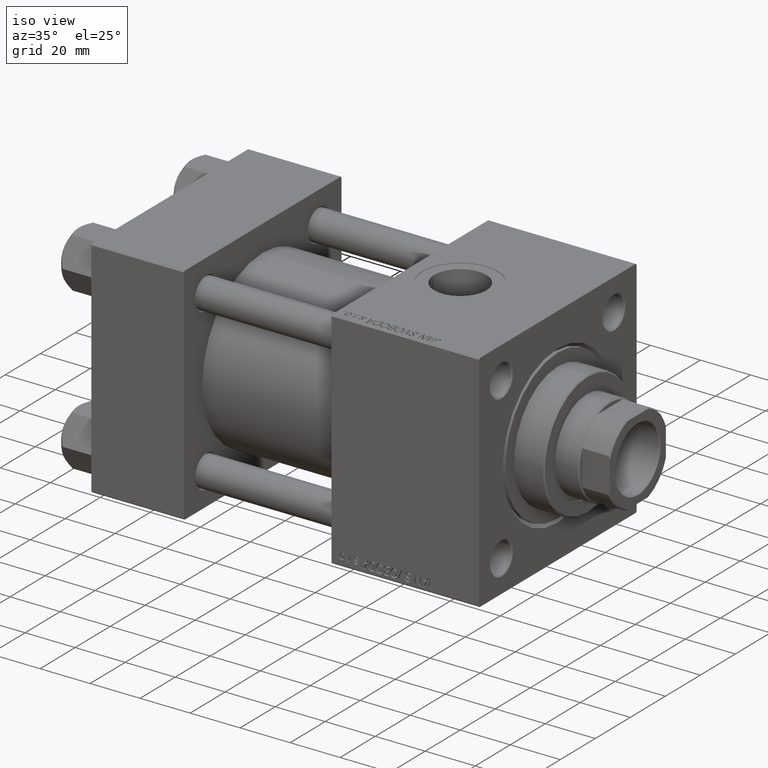
[diagram: clean part render]
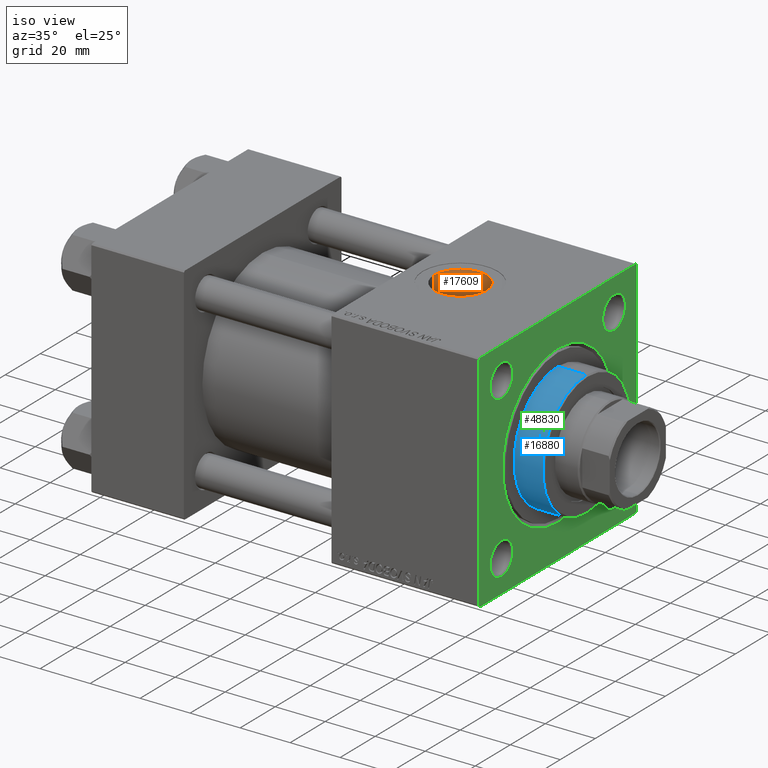
[diagram: same view with three faces highlighted in distinct colors, each labeled with its STEP entity id]
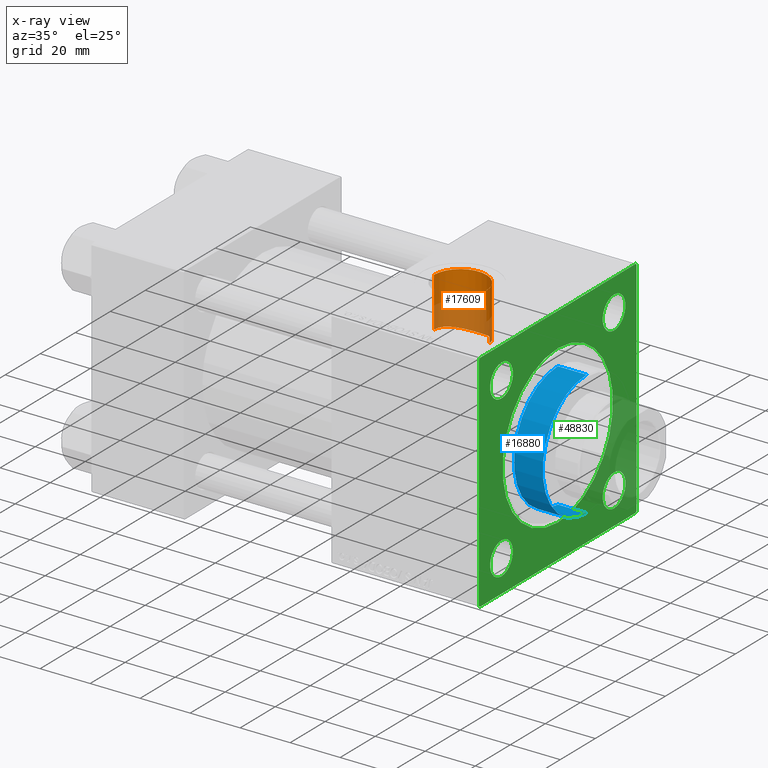
[diagram: x-ray of the same camera — body ghosted, the three highlighted faces saturated]
A machine part, iso view with three faces highlighted in distinct colors.
The next image is the same camera in x-ray (body ghosted, the three faces saturated) — at least one of them is partly hidden behind the body in this view.
Their STEP definitions:

[orange] entity #17609 — the highlighted cylindrical surface (edge-blend (fillet) strip) has radius 10.48 mm, axis along (0, 0, -1).
#212 = CARTESIAN_POINT ( 'NONE',  ( 126.4800000000000040, -5.655464058400803678E-15, 44.80000000000000426 ) ) ;
#1016 = CARTESIAN_POINT ( 'NONE',  ( 105.5200000000000102, 0.3287850015386533653, 25.00000000000001066 ) ) ;
#1279 = CARTESIAN_POINT ( 'NONE',  ( 126.4800000000000040, 0.6446704584514654224, 30.00000000000000000 ) ) ;
#1420 = EDGE_CURVE ( 'NONE', #22558, #20490, #41593, .T. ) ;
#2003 = CARTESIAN_POINT ( 'NONE',  ( 117.6386177692833286, 10.37204485282558331, 22.74698456315752182 ) ) ;
#2462 = EDGE_CURVE ( 'NONE', #35731, #21746, #36082, .T. ) ;
#2507 = CARTESIAN_POINT ( 'NONE',  ( 123.5346559080208522, 7.291128265817105714, 23.91442154817949728 ) ) ;
#3265 = DIRECTION ( 'NONE',  ( 0.000000000000000000, 0.000000000000000000, -1.000000000000000000 ) ) ;
#3371 = DIRECTION ( 'NONE',  ( -0.000000000000000000, -0.000000000000000000, -1.000000000000000000 ) ) ;
#4044 = VECTOR ( 'NONE', #3265, 1000.000000000000000 ) ;
#5501 = DIRECTION ( 'NONE',  ( -1.000000000000000000, 0.000000000000000000, 0.000000000000000000 ) ) ;
#5811 = CARTESIAN_POINT ( 'NONE',  ( 119.5162921391537054, 9.877839664245765761, 22.96616710619939994 ) ) ;
#6326 = CARTESIAN_POINT ( 'NONE',  ( 126.2999999999999972, 1.934011375354389939, 24.92507973909010488 ) ) ;
#6576 = CARTESIAN_POINT ( 'NONE',  ( 110.2019733445123819, 8.735928194877923048, 23.42469629605734127 ) ) ;
#7190 = LINE ( 'NONE', #11480, #13399 ) ;
#8369 = LINE ( 'NONE', #23838, #40076 ) ;
#9116 = CARTESIAN_POINT ( 'NONE',  ( 106.1232496530287648, 3.519319470400923411, 24.75293856241372836 ) ) ;
#9614 = CARTESIAN_POINT ( 'NONE',  ( 114.7045387977235436, 10.40468030871039318, 22.73199781475518222 ) ) ;
#10119 = CARTESIAN_POINT ( 'NONE',  ( 121.8230811921165895, 8.736836638396551891, 23.42725551097151637 ) ) ;
#10352 = CARTESIAN_POINT ( 'NONE',  ( 126.2999999999999972, 1.934011375354389939, 29.93759509379468753 ) ) ;
#10626 = CARTESIAN_POINT ( 'NONE',  ( 105.5199999999999960, 3.061768933645607322E-15, 25.00000000000000000 ) ) ;
#11193 = CARTESIAN_POINT ( 'NONE',  ( 126.4210485436893237, 1.289340916902927958, 29.97924172559974210 ) ) ;
#11480 = CARTESIAN_POINT ( 'NONE',  ( 126.2999999999999972, 1.934011375354389939, 67.79999999999999716 ) ) ;
#11538 = B_SPLINE_CURVE_WITH_KNOTS ( 'NONE', 3,
 ( #35766, #1016, #47712, #16471, #43156, #43898, #15988, #23852, #9116, #12924, #24595, #44151, #37274, #21281, #28640, #40584, #6576, #41340, #44903, #17464, #14166, #36767, #41092, #36518, #9614, #17966, #32957, #2003, #32455, #44402, #5811, #47958, #17216, #25091, #10119, #29144, #16965, #40339, #2507, #25848, #33205, #48720, #48464, #22035, #25599, #24845, #13667, #6326 ),
 .UNSPECIFIED., .F., .F.,
 ( 4, 2, 2, 2, 2, 2, 2, 2, 2, 2, 2, 2, 2, 2, 2, 2, 2, 2, 2, 2, 2, 2, 2, 4 ),
 ( 0.03121016949216451342, 0.03218464452383351659, 0.03315911955550251977, 0.03413359458717152989, 0.03510806961884053307, 0.03705701968217853248, 0.03900596974551652496, 0.04095491980885451744, 0.04192939484052350674, 0.04290386987219248216, 0.04485281993553048852, 0.04582729496719946394, 0.04680176999886843936, 0.04875072006220640408, 0.05069967012554435493, 0.05167414515721335810, 0.05264862018888236128, 0.05459757025222039539, 0.05557204528388942633, 0.05654652031555845726, 0.05849547037889651913, 0.05946994541056553618, 0.06044442044223456711, 0.06239337050557263592 ),
 .UNSPECIFIED. ) ;
#12663 = CARTESIAN_POINT ( 'NONE',  ( 126.4800000000000040, 3.352779466116923030E-15, 30.00000000000000000 ) ) ;
#12924 = CARTESIAN_POINT ( 'NONE',  ( 106.4784251406594962, 4.426244458063012921, 24.61265260054171833 ) ) ;
#13101 = CYLINDRICAL_SURFACE ( 'NONE', #25536, 10.48000000000000398 ) ;
#13327 = EDGE_CURVE ( 'NONE', #22558, #33850, #16578, .T. ) ;
#13399 = VECTOR ( 'NONE', #13602, 1000.000000000000000 ) ;
#13602 = DIRECTION ( 'NONE',  ( 0.000000000000000000, 0.000000000000000000, -1.000000000000000000 ) ) ;
#13667 = CARTESIAN_POINT ( 'NONE',  ( 126.1785022418928435, 2.581074223304206772, 24.87487220027363222 ) ) ;
#13781 = CARTESIAN_POINT ( 'NONE',  ( 105.5199999999999960, -6.938893903907229955E-15, 44.80000000000000426 ) ) ;
#14166 = CARTESIAN_POINT ( 'NONE',  ( 112.4831019260238776, 9.893757827435578633, 22.95979354450773968 ) ) ;
#15988 = CARTESIAN_POINT ( 'NONE',  ( 105.8381471228398283, 2.583199243602494199, 24.86817457876016491 ) ) ;
#16471 = CARTESIAN_POINT ( 'NONE',  ( 105.5968747370656189, 1.308391668130473473, 24.96785615383025814 ) ) ;
#16578 = CIRCLE ( 'NONE', #49836, 10.48000000000000398 ) ;
#16737 = CARTESIAN_POINT ( 'NONE',  ( 126.4800000000000040, 3.352779466116923030E-15, 30.00000000000000000 ) ) ;
#16965 = CARTESIAN_POINT ( 'NONE',  ( 122.8367452354718239, 7.949336738018656590, 23.70358087546936332 ) ) ;
#17216 = CARTESIAN_POINT ( 'NONE',  ( 120.4188195642436199, 9.508309770353220003, 23.12177175093559001 ) ) ;
#17464 = CARTESIAN_POINT ( 'NONE',  ( 111.8851596875121572, 9.659575400900973108, 23.06052388961923683 ) ) ;
#17609 = ADVANCED_FACE ( 'NONE', ( #47896 ), #13101, .F. ) ;
#17966 = CARTESIAN_POINT ( 'NONE',  ( 115.6733399539854474, 10.49497315035231182, 22.69052503754342354 ) ) ;
#19081 = CARTESIAN_POINT ( 'NONE',  ( 116.0000000000000000, -6.938893903907229955E-15, 44.80000000000000426 ) ) ;
#20490 = VERTEX_POINT ( 'NONE', #10626 ) ;
#21281 = CARTESIAN_POINT ( 'NONE',  ( 108.6990350769791149, 7.545365073248964549, 23.83920699503248386 ) ) ;
#21746 = VERTEX_POINT ( 'NONE', #12663 ) ;
#22035 = CARTESIAN_POINT ( 'NONE',  ( 125.5190933919545273, 4.395560038025625893, 24.61229465162431040 ) ) ;
#22297 = VERTEX_POINT ( 'NONE', #48389 ) ;
#22558 = VERTEX_POINT ( 'NONE', #13781 ) ;
#22875 = EDGE_LOOP ( 'NONE', ( #48100, #37333, #24196, #46566, #37998, #27066 ) ) ;
#23838 = CARTESIAN_POINT ( 'NONE',  ( 126.4800000000000040, -5.655464058400803678E-15, 67.79999999999999716 ) ) ;
#23852 = CARTESIAN_POINT ( 'NONE',  ( 106.0178759252195277, 3.208328409761893596, 24.79527483265623644 ) ) ;
#24089 = DIRECTION ( 'NONE',  ( 0.000000000000000000, 0.000000000000000000, -1.000000000000000000 ) ) ;
#24196 = ORIENTED_EDGE ( 'NONE', *, *, #1420, .T. ) ;
#24595 = CARTESIAN_POINT ( 'NONE',  ( 106.7671663617161357, 4.999617035179606539, 24.50132901008040065 ) ) ;
#24845 = CARTESIAN_POINT ( 'NONE',  ( 125.9991942442599822, 3.203101616166324828, 24.80136239248102825 ) ) ;
#25091 = CARTESIAN_POINT ( 'NONE',  ( 121.2812565894447232, 9.074845065222547191, 23.29687364020410811 ) ) ;
#25536 = AXIS2_PLACEMENT_3D ( 'NONE', #48151, #28576, #5501 ) ;
#25599 = CARTESIAN_POINT ( 'NONE',  ( 125.6493108754359298, 4.101772300320491560, 24.66307610818221718 ) ) ;
#25848 = CARTESIAN_POINT ( 'NONE',  ( 124.1771732855569894, 6.585514499373144481, 24.12201144741169401 ) ) ;
#27066 = ORIENTED_EDGE ( 'NONE', *, *, #2462, .T. ) ;
#28576 = DIRECTION ( 'NONE',  ( 0.000000000000000000, 0.000000000000000000, -1.000000000000000000 ) ) ;
#28640 = CARTESIAN_POINT ( 'NONE',  ( 109.1687481271819706, 7.973357901501731071, 23.69796365038536834 ) ) ;
#29144 = CARTESIAN_POINT ( 'NONE',  ( 122.5884970808938448, 8.156264676250790657, 23.63297485160378031 ) ) ;
#30506 = DIRECTION ( 'NONE',  ( 1.000000000000000000, 0.000000000000000000, 0.000000000000000000 ) ) ;
#32455 = CARTESIAN_POINT ( 'NONE',  ( 118.2768204000753371, 10.25012929133886352, 22.80291826729093074 ) ) ;
#32957 = CARTESIAN_POINT ( 'NONE',  ( 116.3268763252384161, 10.49559595691618874, 22.69024210216181459 ) ) ;
#33205 = CARTESIAN_POINT ( 'NONE',  ( 124.5621068483242055, 6.077585296273588789, 24.25652138941319436 ) ) ;
#33607 = EDGE_CURVE ( 'NONE', #20490, #22297, #11538, .T. ) ;
#33850 = VERTEX_POINT ( 'NONE', #212 ) ;
#35731 = VERTEX_POINT ( 'NONE', #10352 ) ;
#35766 = CARTESIAN_POINT ( 'NONE',  ( 105.5199999999999960, 3.061768933645607322E-15, 25.00000000000000000 ) ) ;
#36082 = B_SPLINE_CURVE_WITH_KNOTS ( 'NONE', 3,
 ( #45985, #11193, #1279, #16737 ),
 .UNSPECIFIED., .F., .F.,
 ( 4, 4 ),
 ( 0.000000000000000000, 0.001934011375354386698 ),
 .UNSPECIFIED. ) ;
#36312 = EDGE_CURVE ( 'NONE', #33850, #21746, #8369, .T. ) ;
#36518 = CARTESIAN_POINT ( 'NONE',  ( 114.3830684219185798, 10.35963101535786102, 22.75263517047128303 ) ) ;
#36767 = CARTESIAN_POINT ( 'NONE',  ( 113.4226261123151716, 10.16335071941091073, 22.84110205403496252 ) ) ;
#37274 = CARTESIAN_POINT ( 'NONE',  ( 107.8384609629549260, 6.604990798069032110, 24.11668345353552212 ) ) ;
#37333 = ORIENTED_EDGE ( 'NONE', *, *, #13327, .F. ) ;
#37998 = ORIENTED_EDGE ( 'NONE', *, *, #43593, .F. ) ;
#40076 = VECTOR ( 'NONE', #24089, 1000.000000000000000 ) ;
#40339 = CARTESIAN_POINT ( 'NONE',  ( 123.3095492883835362, 7.516882943737513756, 23.84424818912263078 ) ) ;
#40584 = CARTESIAN_POINT ( 'NONE',  ( 109.9349178649771375, 8.552642181762106333, 23.49243050560861690 ) ) ;
#41092 = CARTESIAN_POINT ( 'NONE',  ( 113.7430657101277376, 10.23927097569745648, 22.80705355501167020 ) ) ;
#41340 = CARTESIAN_POINT ( 'NONE',  ( 110.7478055748506875, 9.074580334331647791, 23.29559678875702744 ) ) ;
#41593 = LINE ( 'NONE', #50230, #4044 ) ;
#43156 = CARTESIAN_POINT ( 'NONE',  ( 105.6424818341990459, 1.630161534427958081, 24.94884296524732292 ) ) ;
#43593 = EDGE_CURVE ( 'NONE', #35731, #22297, #7190, .T. ) ;
#43898 = CARTESIAN_POINT ( 'NONE',  ( 105.7631178406935675, 2.267565399210858423, 24.89900277306706755 ) ) ;
#44151 = CARTESIAN_POINT ( 'NONE',  ( 107.4454009048542815, 6.087710720132601061, 24.25388776972977567 ) ) ;
#44402 = CARTESIAN_POINT ( 'NONE',  ( 119.2095190560418416, 9.981685871371876573, 22.92107120454307534 ) ) ;
#44903 = CARTESIAN_POINT ( 'NONE',  ( 111.0272351189628068, 9.230614084050129620, 23.23401715973118087 ) ) ;
#45985 = CARTESIAN_POINT ( 'NONE',  ( 126.2999999999999972, 1.934011375354389939, 29.93759509379468753 ) ) ;
#46566 = ORIENTED_EDGE ( 'NONE', *, *, #33607, .T. ) ;
#47712 = CARTESIAN_POINT ( 'NONE',  ( 105.5356230239824953, 0.6585730766822409654, 24.99343936272600430 ) ) ;
#47896 = FACE_OUTER_BOUND ( 'NONE', #22875, .T. ) ;
#47958 = CARTESIAN_POINT ( 'NONE',  ( 120.1216041761687165, 9.640975358095740688, 23.06660230998516070 ) ) ;
#48100 = ORIENTED_EDGE ( 'NONE', *, *, #36312, .F. ) ;
#48151 = CARTESIAN_POINT ( 'NONE',  ( 116.0000000000000000, -6.938893903907229955E-15, 67.79999999999999716 ) ) ;
#48389 = CARTESIAN_POINT ( 'NONE',  ( 126.2999999999999972, 1.934011375354389939, 24.92507973909010488 ) ) ;
#48464 = CARTESIAN_POINT ( 'NONE',  ( 125.2312790006573948, 4.971677288869586597, 24.50241663594839991 ) ) ;
#48720 = CARTESIAN_POINT ( 'NONE',  ( 125.0727601258625157, 5.255426041479307919, 24.44298397004090262 ) ) ;
#49836 = AXIS2_PLACEMENT_3D ( 'NONE', #19081, #3371, #30506 ) ;
#50230 = CARTESIAN_POINT ( 'NONE',  ( 105.5199999999999960, -6.938893903907229955E-15, 67.79999999999999716 ) ) ;

[blue] entity #16880 — the highlighted cylindrical surface (partial cylindrical patch) has radius 25 mm, axis along (-1, -0, 0).
#883 = DIRECTION ( 'NONE',  ( -1.000000000000000000, 0.000000000000000000, 0.000000000000000000 ) ) ;
#894 = DIRECTION ( 'NONE',  ( 0.000000000000000000, 0.000000000000000000, -1.000000000000000000 ) ) ;
#3136 = CARTESIAN_POINT ( 'NONE',  ( -25.00000000000000000, 0.000000000000000000, 40.20000000000000284 ) ) ;
#3322 = LINE ( 'NONE', #14983, #6936 ) ;
#5190 = DIRECTION ( 'NONE',  ( 1.000000000000000000, 0.000000000000000000, 0.000000000000000000 ) ) ;
#6828 = DIRECTION ( 'NONE',  ( 0.000000000000000000, 0.000000000000000000, 1.000000000000000000 ) ) ;
#6936 = VECTOR ( 'NONE', #37587, 1000.000000000000000 ) ;
#7042 = ORIENTED_EDGE ( 'NONE', *, *, #47667, .T. ) ;
#8484 = AXIS2_PLACEMENT_3D ( 'NONE', #33390, #23969, #883 ) ;
#9934 = ORIENTED_EDGE ( 'NONE', *, *, #40434, .F. ) ;
#10786 = FACE_OUTER_BOUND ( 'NONE', #22251, .T. ) ;
#14983 = CARTESIAN_POINT ( 'NONE',  ( 25.00000000000000000, 3.061616997868383043E-15, 40.70000000000000284 ) ) ;
#16880 = ADVANCED_FACE ( 'NONE', ( #10786 ), #17899, .T. ) ;
#17057 = ORIENTED_EDGE ( 'NONE', *, *, #46599, .T. ) ;
#17899 = CYLINDRICAL_SURFACE ( 'NONE', #8484, 25.00000000000000000 ) ;
#19213 = CARTESIAN_POINT ( 'NONE',  ( -25.00000000000000000, 0.000000000000000000, 40.70000000000000284 ) ) ;
#20861 = AXIS2_PLACEMENT_3D ( 'NONE', #39709, #894, #5190 ) ;
#22251 = EDGE_LOOP ( 'NONE', ( #9934, #7042, #17057, #35916 ) ) ;
#23969 = DIRECTION ( 'NONE',  ( -0.000000000000000000, -0.000000000000000000, -1.000000000000000000 ) ) ;
#27766 = CARTESIAN_POINT ( 'NONE',  ( 25.00000000000000000, 3.061616997868383043E-15, 40.20000000000000284 ) ) ;
#29350 = VERTEX_POINT ( 'NONE', #45525 ) ;
#30129 = DIRECTION ( 'NONE',  ( -0.000000000000000000, -0.000000000000000000, -1.000000000000000000 ) ) ;
#30807 = VERTEX_POINT ( 'NONE', #43912 ) ;
#32126 = CIRCLE ( 'NONE', #33724, 25.00000000000000000 ) ;
#33390 = CARTESIAN_POINT ( 'NONE',  ( 0.000000000000000000, 0.000000000000000000, 40.70000000000000284 ) ) ;
#33724 = AXIS2_PLACEMENT_3D ( 'NONE', #45408, #6828, #49230 ) ;
#35208 = LINE ( 'NONE', #19213, #46768 ) ;
#35916 = ORIENTED_EDGE ( 'NONE', *, *, #45162, .T. ) ;
#36899 = VERTEX_POINT ( 'NONE', #27766 ) ;
#37587 = DIRECTION ( 'NONE',  ( -0.000000000000000000, -0.000000000000000000, -1.000000000000000000 ) ) ;
#39709 = CARTESIAN_POINT ( 'NONE',  ( 0.000000000000000000, 0.000000000000000000, 40.20000000000000284 ) ) ;
#40140 = VERTEX_POINT ( 'NONE', #3136 ) ;
#40434 = EDGE_CURVE ( 'NONE', #36899, #30807, #3322, .T. ) ;
#43563 = CIRCLE ( 'NONE', #20861, 25.00000000000000000 ) ;
#43912 = CARTESIAN_POINT ( 'NONE',  ( 25.00000000000000000, 3.061616997868383043E-15, 28.69999999999999929 ) ) ;
#45162 = EDGE_CURVE ( 'NONE', #29350, #30807, #32126, .T. ) ;
#45408 = CARTESIAN_POINT ( 'NONE',  ( 0.000000000000000000, 0.000000000000000000, 28.69999999999999929 ) ) ;
#45525 = CARTESIAN_POINT ( 'NONE',  ( -25.00000000000000000, 0.000000000000000000, 28.69999999999999929 ) ) ;
#46599 = EDGE_CURVE ( 'NONE', #40140, #29350, #35208, .T. ) ;
#46768 = VECTOR ( 'NONE', #30129, 1000.000000000000000 ) ;
#47667 = EDGE_CURVE ( 'NONE', #36899, #40140, #43563, .T. ) ;
#49230 = DIRECTION ( 'NONE',  ( 1.000000000000000000, 0.000000000000000000, 0.000000000000000000 ) ) ;

[green] entity #48830 — the highlighted planar face has unit normal (-1, 0, 0).
#1508 = DIRECTION ( 'NONE',  ( 0.000000000000000000, 0.000000000000000000, 1.000000000000000000 ) ) ;
#2094 = ORIENTED_EDGE ( 'NONE', *, *, #21724, .F. ) ;
#2341 = ORIENTED_EDGE ( 'NONE', *, *, #48738, .T. ) ;
#2552 = EDGE_CURVE ( 'NONE', #19174, #50063, #22723, .T. ) ;
#2749 = CARTESIAN_POINT ( 'NONE',  ( 155.0000000000000000, 0.000000000000000000, 0.000000000000000000 ) ) ;
#2877 = CIRCLE ( 'NONE', #48250, 31.49999999999997158 ) ;
#2917 = CIRCLE ( 'NONE', #10975, 6.499999999999977796 ) ;
#3071 = CARTESIAN_POINT ( 'NONE',  ( 155.0000000000000000, 32.14999999999999147, -32.14999999999999858 ) ) ;
#3272 = AXIS2_PLACEMENT_3D ( 'NONE', #24116, #24865, #31975 ) ;
#4133 = DIRECTION ( 'NONE',  ( -1.000000000000000000, 0.000000000000000000, -0.000000000000000000 ) ) ;
#4163 = DIRECTION ( 'NONE',  ( 0.000000000000000000, 0.000000000000000000, 1.000000000000000000 ) ) ;
#4533 = ORIENTED_EDGE ( 'NONE', *, *, #10813, .T. ) ;
#5307 = DIRECTION ( 'NONE',  ( -1.000000000000000000, 0.000000000000000000, -0.000000000000000000 ) ) ;
#6180 = EDGE_CURVE ( 'NONE', #37421, #50125, #28747, .T. ) ;
#6874 = EDGE_CURVE ( 'NONE', #50125, #24243, #29028, .T. ) ;
#7046 = VECTOR ( 'NONE', #40856, 1000.000000000000000 ) ;
#7057 = CARTESIAN_POINT ( 'NONE',  ( 155.0000000000000000, -32.14999999999999858, 25.65000000000001990 ) ) ;
#7223 = ORIENTED_EDGE ( 'NONE', *, *, #41068, .T. ) ;
#7473 = VECTOR ( 'NONE', #8204, 1000.000000000000114 ) ;
#7555 = DIRECTION ( 'NONE',  ( -0.000000000000000000, 0.000000000000000000, 1.000000000000000000 ) ) ;
#7577 = AXIS2_PLACEMENT_3D ( 'NONE', #37385, #32565, #48074 ) ;
#7766 = CIRCLE ( 'NONE', #36114, 6.499999999999977796 ) ;
#8204 = DIRECTION ( 'NONE',  ( -0.000000000000000000, -0.7071067811865474617, -0.7071067811865474617 ) ) ;
#8694 = ORIENTED_EDGE ( 'NONE', *, *, #40264, .T. ) ;
#10107 = CARTESIAN_POINT ( 'NONE',  ( 155.0000000000000000, -32.14999999999999858, 38.64999999999997726 ) ) ;
#10165 = CARTESIAN_POINT ( 'NONE',  ( 155.0000000000000000, -32.14999999999999858, -32.14999999999999858 ) ) ;
#10172 = EDGE_CURVE ( 'NONE', #35187, #19290, #17304, .T. ) ;
#10813 = EDGE_CURVE ( 'NONE', #19191, #21189, #13253, .T. ) ;
#10847 = PLANE ( 'NONE',  #33037 ) ;
#10975 = AXIS2_PLACEMENT_3D ( 'NONE', #20342, #39652, #47530 ) ;
#11077 = VECTOR ( 'NONE', #46958, 1000.000000000000000 ) ;
#11351 = DIRECTION ( 'NONE',  ( -1.000000000000000000, 0.000000000000000000, -0.000000000000000000 ) ) ;
#12705 = CARTESIAN_POINT ( 'NONE',  ( 155.0000000000000000, 0.000000000000000000, 0.000000000000000000 ) ) ;
#13120 = ORIENTED_EDGE ( 'NONE', *, *, #43870, .T. ) ;
#13253 = CIRCLE ( 'NONE', #19739, 31.49999999999997158 ) ;
#13758 = ORIENTED_EDGE ( 'NONE', *, *, #43611, .T. ) ;
#14424 = VERTEX_POINT ( 'NONE', #40646 ) ;
#14530 = CARTESIAN_POINT ( 'NONE',  ( 155.0000000000000000, -44.50000000000002842, -45.00000000000000000 ) ) ;
#14907 = FACE_OUTER_BOUND ( 'NONE', #47281, .T. ) ;
#15102 = DIRECTION ( 'NONE',  ( -1.000000000000000000, 0.000000000000000000, -0.000000000000000000 ) ) ;
#15259 = ORIENTED_EDGE ( 'NONE', *, *, #29132, .T. ) ;
#15378 = EDGE_LOOP ( 'NONE', ( #4533, #36353 ) ) ;
#15397 = CARTESIAN_POINT ( 'NONE',  ( 155.0000000000000000, 44.50000000000000000, -44.99999999999998579 ) ) ;
#15520 = CARTESIAN_POINT ( 'NONE',  ( 155.0000000000000000, 32.14999999999999147, 38.64999999999997726 ) ) ;
#16618 = VECTOR ( 'NONE', #23073, 1000.000000000000114 ) ;
#16651 = CIRCLE ( 'NONE', #46658, 6.499999999999977796 ) ;
#16952 = CARTESIAN_POINT ( 'NONE',  ( 155.0000000000000000, 45.00000000000000000, 45.00000000000001421 ) ) ;
#17033 = DIRECTION ( 'NONE',  ( 0.000000000000000000, -1.000000000000000000, -1.541976423090495387E-16 ) ) ;
#17304 = CIRCLE ( 'NONE', #7577, 6.499999999999977796 ) ;
#17490 = CARTESIAN_POINT ( 'NONE',  ( 155.0000000000000000, -45.00000000000000000, 45.00000000000000000 ) ) ;
#18156 = LINE ( 'NONE', #36963, #18504 ) ;
#18504 = VECTOR ( 'NONE', #32901, 1000.000000000000114 ) ;
#18623 = CARTESIAN_POINT ( 'NONE',  ( 155.0000000000000000, -45.00000000000000000, 44.50000000000002842 ) ) ;
#18637 = CARTESIAN_POINT ( 'NONE',  ( 155.0000000000000000, -32.14999999999999858, -38.64999999999997726 ) ) ;
#19074 = AXIS2_PLACEMENT_3D ( 'NONE', #3071, #29456, #45462 ) ;
#19174 = VERTEX_POINT ( 'NONE', #15520 ) ;
#19191 = VERTEX_POINT ( 'NONE', #43186 ) ;
#19290 = VERTEX_POINT ( 'NONE', #40867 ) ;
#19739 = AXIS2_PLACEMENT_3D ( 'NONE', #45581, #15102, #38962 ) ;
#20055 = VERTEX_POINT ( 'NONE', #18637 ) ;
#20342 = CARTESIAN_POINT ( 'NONE',  ( 155.0000000000000000, -32.14999999999999858, -32.14999999999999858 ) ) ;
#21189 = VERTEX_POINT ( 'NONE', #41757 ) ;
#21521 = CARTESIAN_POINT ( 'NONE',  ( 155.0000000000000000, -32.14999999999999858, 32.14999999999999858 ) ) ;
#21724 = EDGE_CURVE ( 'NONE', #14424, #26990, #31453, .T. ) ;
#21927 = CIRCLE ( 'NONE', #38967, 6.499999999999977796 ) ;
#22131 = VERTEX_POINT ( 'NONE', #7057 ) ;
#22723 = CIRCLE ( 'NONE', #3272, 6.499999999999977796 ) ;
#22739 = VERTEX_POINT ( 'NONE', #14530 ) ;
#23073 = DIRECTION ( 'NONE',  ( 0.000000000000000000, -0.7071067811865474617, 0.7071067811865474617 ) ) ;
#23340 = AXIS2_PLACEMENT_3D ( 'NONE', #21521, #5307, #36754 ) ;
#23703 = EDGE_LOOP ( 'NONE', ( #41620, #13120 ) ) ;
#24095 = CARTESIAN_POINT ( 'NONE',  ( 155.0000000000000000, 32.14999999999999147, 32.14999999999999858 ) ) ;
#24116 = CARTESIAN_POINT ( 'NONE',  ( 155.0000000000000000, 32.14999999999999147, 32.14999999999999858 ) ) ;
#24243 = VERTEX_POINT ( 'NONE', #18623 ) ;
#24865 = DIRECTION ( 'NONE',  ( -1.000000000000000000, 0.000000000000000000, -0.000000000000000000 ) ) ;
#24878 = ORIENTED_EDGE ( 'NONE', *, *, #28342, .T. ) ;
#24955 = CIRCLE ( 'NONE', #23340, 6.499999999999977796 ) ;
#25302 = ORIENTED_EDGE ( 'NONE', *, *, #40325, .F. ) ;
#25602 = ORIENTED_EDGE ( 'NONE', *, *, #42504, .T. ) ;
#25652 = DIRECTION ( 'NONE',  ( -1.000000000000000000, 0.000000000000000000, -0.000000000000000000 ) ) ;
#25666 = LINE ( 'NONE', #36338, #43421 ) ;
#26330 = FACE_BOUND ( 'NONE', #29046, .T. ) ;
#26477 = DIRECTION ( 'NONE',  ( 0.000000000000000000, 0.7071067811865474617, -0.7071067811865474617 ) ) ;
#26990 = VERTEX_POINT ( 'NONE', #46828 ) ;
#28208 = CARTESIAN_POINT ( 'NONE',  ( 155.0000000000000000, -32.14999999999999858, 32.14999999999999858 ) ) ;
#28301 = VERTEX_POINT ( 'NONE', #33257 ) ;
#28342 = EDGE_CURVE ( 'NONE', #20055, #36837, #21927, .T. ) ;
#28747 = LINE ( 'NONE', #44761, #41496 ) ;
#28827 = VECTOR ( 'NONE', #26477, 1000.000000000000114 ) ;
#29028 = LINE ( 'NONE', #30020, #7473 ) ;
#29046 = EDGE_LOOP ( 'NONE', ( #13758, #2341 ) ) ;
#29132 = EDGE_CURVE ( 'NONE', #39475, #26990, #18156, .T. ) ;
#29456 = DIRECTION ( 'NONE',  ( -1.000000000000000000, 0.000000000000000000, -0.000000000000000000 ) ) ;
#29676 = CARTESIAN_POINT ( 'NONE',  ( 155.0000000000000000, 44.50000000000002842, 45.00000000000001421 ) ) ;
#30020 = CARTESIAN_POINT ( 'NONE',  ( 155.0000000000000000, -45.00000000000000000, 44.50000000000002842 ) ) ;
#30420 = CARTESIAN_POINT ( 'NONE',  ( 155.0000000000000000, 44.50000000000002842, 45.00000000000001421 ) ) ;
#30636 = FACE_BOUND ( 'NONE', #23703, .T. ) ;
#31453 = LINE ( 'NONE', #16952, #11077 ) ;
#31975 = DIRECTION ( 'NONE',  ( 0.000000000000000000, 0.000000000000000000, 1.000000000000000000 ) ) ;
#32565 = DIRECTION ( 'NONE',  ( -1.000000000000000000, 0.000000000000000000, -0.000000000000000000 ) ) ;
#32901 = DIRECTION ( 'NONE',  ( -0.000000000000000000, 0.7071067811865474617, 0.7071067811865474617 ) ) ;
#33037 = AXIS2_PLACEMENT_3D ( 'NONE', #2749, #11351, #7555 ) ;
#33257 = CARTESIAN_POINT ( 'NONE',  ( 155.0000000000000000, -45.00000000000000000, -44.50000000000002842 ) ) ;
#33902 = ORIENTED_EDGE ( 'NONE', *, *, #43145, .T. ) ;
#34011 = DIRECTION ( 'NONE',  ( 0.000000000000000000, 0.000000000000000000, 1.000000000000000000 ) ) ;
#34702 = FACE_BOUND ( 'NONE', #40544, .T. ) ;
#35187 = VERTEX_POINT ( 'NONE', #40121 ) ;
#35759 = DIRECTION ( 'NONE',  ( -1.000000000000000000, 0.000000000000000000, -0.000000000000000000 ) ) ;
#36114 = AXIS2_PLACEMENT_3D ( 'NONE', #28208, #4133, #43214 ) ;
#36338 = CARTESIAN_POINT ( 'NONE',  ( 155.0000000000000000, 45.00000000000000000, -44.99999999999998579 ) ) ;
#36353 = ORIENTED_EDGE ( 'NONE', *, *, #39122, .T. ) ;
#36378 = DIRECTION ( 'NONE',  ( 0.000000000000000000, -1.000000000000000000, -1.541976423090495387E-16 ) ) ;
#36754 = DIRECTION ( 'NONE',  ( 0.000000000000000000, 0.000000000000000000, 1.000000000000000000 ) ) ;
#36837 = VERTEX_POINT ( 'NONE', #45832 ) ;
#36963 = CARTESIAN_POINT ( 'NONE',  ( 155.0000000000000000, 45.00000000000000000, -44.49999999999998579 ) ) ;
#37385 = CARTESIAN_POINT ( 'NONE',  ( 155.0000000000000000, 32.14999999999999147, -32.14999999999999858 ) ) ;
#37421 = VERTEX_POINT ( 'NONE', #29676 ) ;
#37505 = FACE_BOUND ( 'NONE', #40711, .T. ) ;
#38667 = CARTESIAN_POINT ( 'NONE',  ( 155.0000000000000000, -44.50000000000005684, -45.00000000000000000 ) ) ;
#38962 = DIRECTION ( 'NONE',  ( 0.000000000000000000, 0.000000000000000000, 1.000000000000000000 ) ) ;
#38967 = AXIS2_PLACEMENT_3D ( 'NONE', #10165, #25652, #34011 ) ;
#39046 = ORIENTED_EDGE ( 'NONE', *, *, #2552, .T. ) ;
#39122 = EDGE_CURVE ( 'NONE', #21189, #19191, #2877, .T. ) ;
#39350 = EDGE_CURVE ( 'NONE', #14424, #37421, #46442, .T. ) ;
#39475 = VERTEX_POINT ( 'NONE', #15397 ) ;
#39652 = DIRECTION ( 'NONE',  ( -1.000000000000000000, 0.000000000000000000, -0.000000000000000000 ) ) ;
#40121 = CARTESIAN_POINT ( 'NONE',  ( 155.0000000000000000, 32.14999999999999147, -38.64999999999997726 ) ) ;
#40264 = EDGE_CURVE ( 'NONE', #36837, #20055, #2917, .T. ) ;
#40325 = EDGE_CURVE ( 'NONE', #39475, #22739, #25666, .T. ) ;
#40544 = EDGE_LOOP ( 'NONE', ( #24878, #8694 ) ) ;
#40646 = CARTESIAN_POINT ( 'NONE',  ( 155.0000000000000000, 45.00000000000000000, 44.50000000000004263 ) ) ;
#40711 = EDGE_LOOP ( 'NONE', ( #33902, #39046 ) ) ;
#40856 = DIRECTION ( 'NONE',  ( 0.000000000000000000, 0.000000000000000000, -1.000000000000000000 ) ) ;
#40867 = CARTESIAN_POINT ( 'NONE',  ( 155.0000000000000000, 32.14999999999999147, -25.65000000000001990 ) ) ;
#40989 = CIRCLE ( 'NONE', #19074, 6.499999999999977796 ) ;
#41068 = EDGE_CURVE ( 'NONE', #28301, #22739, #46547, .T. ) ;
#41496 = VECTOR ( 'NONE', #36378, 1000.000000000000000 ) ;
#41620 = ORIENTED_EDGE ( 'NONE', *, *, #10172, .T. ) ;
#41732 = ORIENTED_EDGE ( 'NONE', *, *, #6180, .T. ) ;
#41757 = CARTESIAN_POINT ( 'NONE',  ( 155.0000000000000000, 3.857637417314158745E-15, 31.49999999999997158 ) ) ;
#42504 = EDGE_CURVE ( 'NONE', #24243, #28301, #44930, .T. ) ;
#43145 = EDGE_CURVE ( 'NONE', #50063, #19174, #16651, .T. ) ;
#43186 = CARTESIAN_POINT ( 'NONE',  ( 155.0000000000000000, 0.000000000000000000, -31.49999999999997158 ) ) ;
#43214 = DIRECTION ( 'NONE',  ( 0.000000000000000000, 0.000000000000000000, 1.000000000000000000 ) ) ;
#43421 = VECTOR ( 'NONE', #17033, 1000.000000000000000 ) ;
#43469 = CARTESIAN_POINT ( 'NONE',  ( 155.0000000000000000, -44.50000000000000000, 45.00000000000000000 ) ) ;
#43611 = EDGE_CURVE ( 'NONE', #22131, #46543, #7766, .T. ) ;
#43870 = EDGE_CURVE ( 'NONE', #19290, #35187, #40989, .T. ) ;
#43914 = ORIENTED_EDGE ( 'NONE', *, *, #6874, .T. ) ;
#44761 = CARTESIAN_POINT ( 'NONE',  ( 155.0000000000000000, 45.00000000000000000, 45.00000000000001421 ) ) ;
#44930 = LINE ( 'NONE', #17490, #7046 ) ;
#45285 = CARTESIAN_POINT ( 'NONE',  ( 155.0000000000000000, 32.14999999999999147, 25.65000000000001990 ) ) ;
#45462 = DIRECTION ( 'NONE',  ( 0.000000000000000000, 0.000000000000000000, 1.000000000000000000 ) ) ;
#45581 = CARTESIAN_POINT ( 'NONE',  ( 155.0000000000000000, 0.000000000000000000, 0.000000000000000000 ) ) ;
#45832 = CARTESIAN_POINT ( 'NONE',  ( 155.0000000000000000, -32.14999999999999858, -25.65000000000001990 ) ) ;
#46151 = FACE_BOUND ( 'NONE', #15378, .T. ) ;
#46442 = LINE ( 'NONE', #30420, #16618 ) ;
#46543 = VERTEX_POINT ( 'NONE', #10107 ) ;
#46547 = LINE ( 'NONE', #38667, #28827 ) ;
#46658 = AXIS2_PLACEMENT_3D ( 'NONE', #24095, #35759, #1508 ) ;
#46828 = CARTESIAN_POINT ( 'NONE',  ( 155.0000000000000000, 45.00000000000000000, -44.49999999999995737 ) ) ;
#46958 = DIRECTION ( 'NONE',  ( 0.000000000000000000, 0.000000000000000000, -1.000000000000000000 ) ) ;
#47281 = EDGE_LOOP ( 'NONE', ( #25602, #7223, #25302, #15259, #2094, #49559, #41732, #43914 ) ) ;
#47530 = DIRECTION ( 'NONE',  ( 0.000000000000000000, 0.000000000000000000, 1.000000000000000000 ) ) ;
#47988 = DIRECTION ( 'NONE',  ( -1.000000000000000000, 0.000000000000000000, -0.000000000000000000 ) ) ;
#48074 = DIRECTION ( 'NONE',  ( 0.000000000000000000, 0.000000000000000000, 1.000000000000000000 ) ) ;
#48250 = AXIS2_PLACEMENT_3D ( 'NONE', #12705, #47988, #4163 ) ;
#48738 = EDGE_CURVE ( 'NONE', #46543, #22131, #24955, .T. ) ;
#48830 = ADVANCED_FACE ( 'NONE', ( #37505, #26330, #34702, #30636, #46151, #14907 ), #10847, .F. ) ;
#49559 = ORIENTED_EDGE ( 'NONE', *, *, #39350, .T. ) ;
#50063 = VERTEX_POINT ( 'NONE', #45285 ) ;
#50125 = VERTEX_POINT ( 'NONE', #43469 ) ;